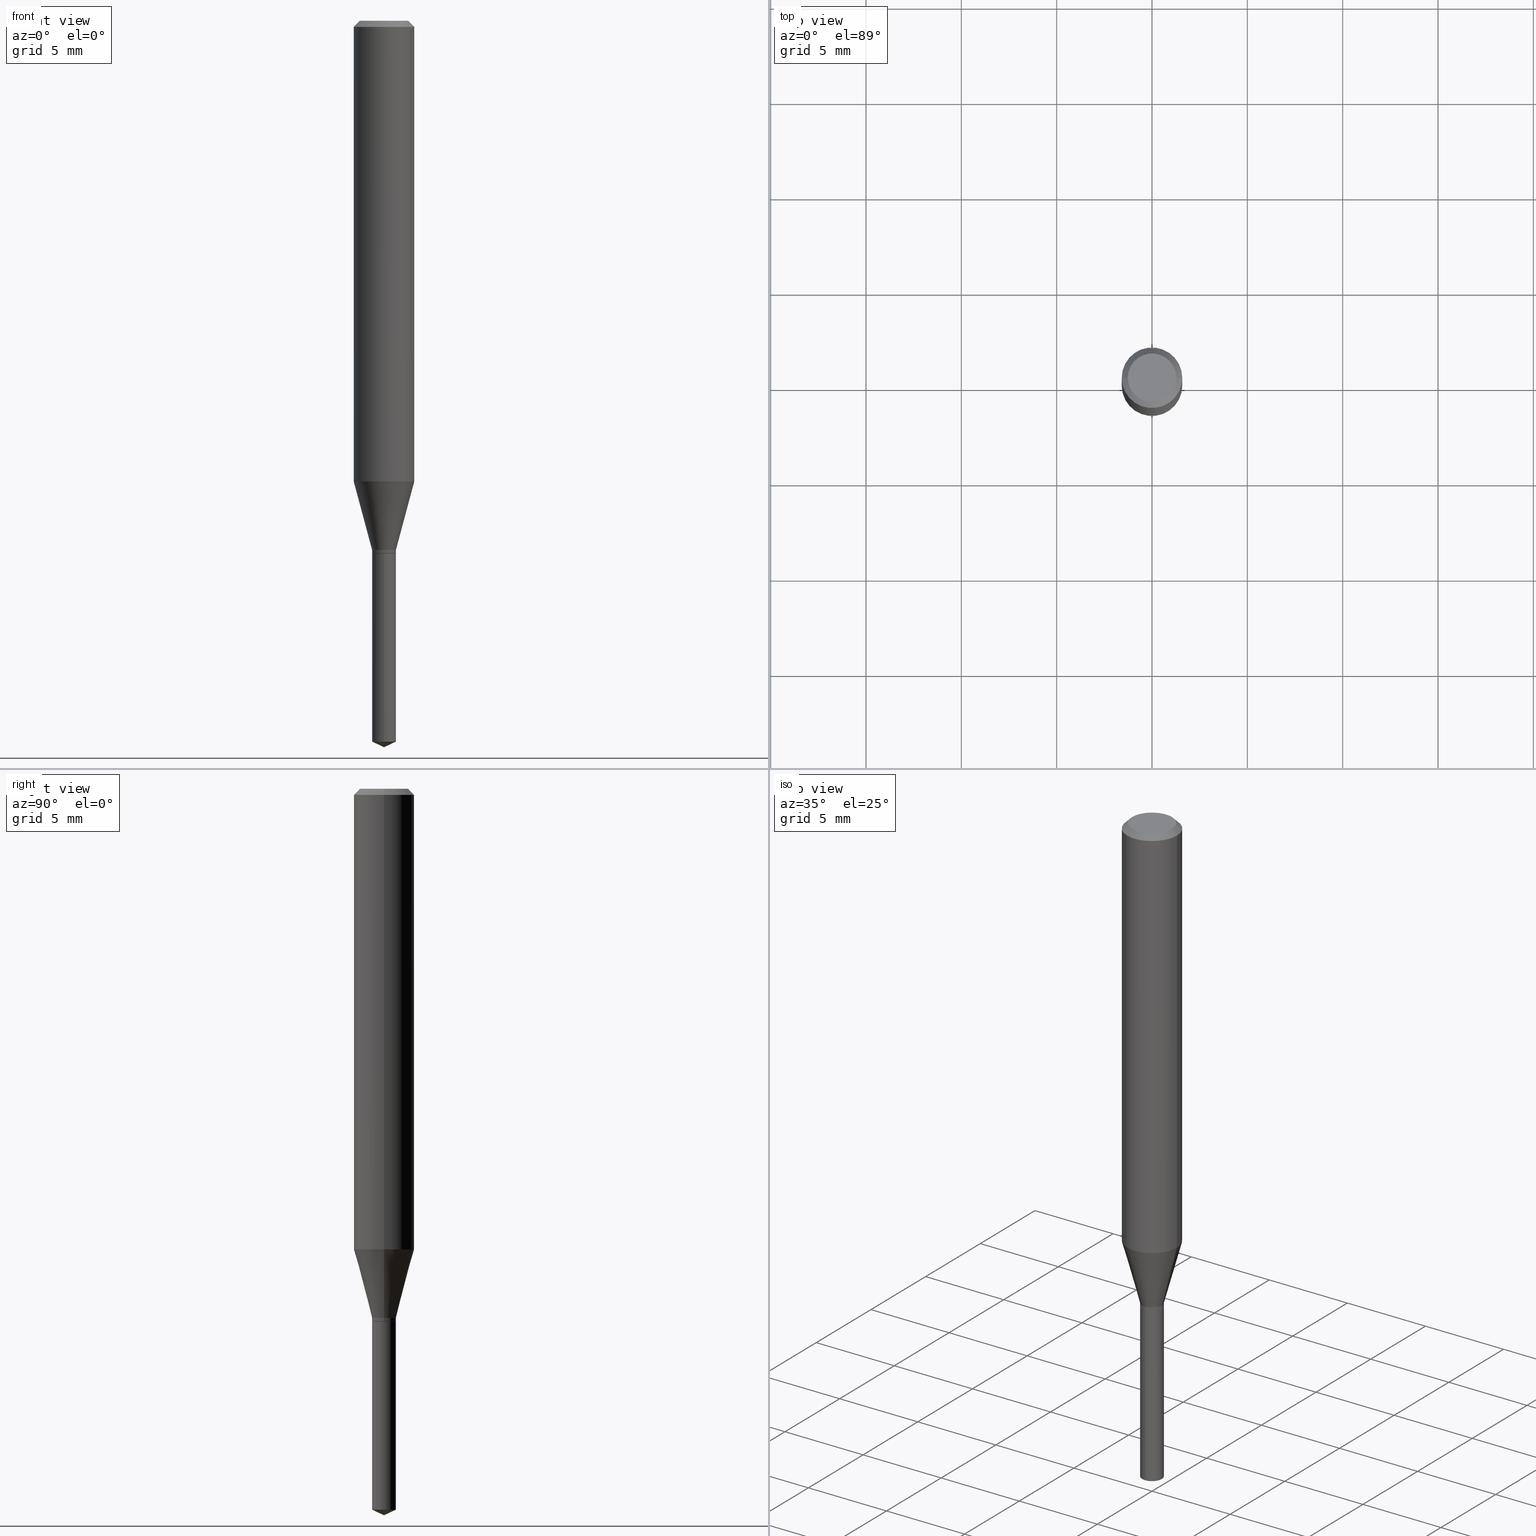
[diagram: canonical four-view strip — front | top / right | iso, engineering-drawing reading convention]
A machine part, canonical four-view strip (front | top / right | iso — engineering-drawing reading convention). The complete STEP part file that produces these views, byte-faithful:
ISO-10303-21;
HEADER;
FILE_DESCRIPTION (( 'STEP AP203' ),
    '1' );
FILE_NAME ('07331.STEP',
    '2024-04-23T20:30:36',
    ( '' ),
    ( '' ),
    'SwSTEP 2.0',
    'SolidWorks 2023',
    '' );
FILE_SCHEMA (( 'CONFIG_CONTROL_DESIGN' ));
ENDSEC;

DATA;
#1 = CALENDAR_DATE ( 2024, 23, 4 ) ;
#2 = ORIENTED_EDGE ( 'NONE', *, *, #324, .T. ) ;
#3 = ADVANCED_FACE ( 'NONE', ( #25 ), #369, .T. ) ;
#4 = PERSON_AND_ORGANIZATION ( #427, #166 ) ;
#5 = DIRECTION ( 'NONE',  ( 1.000000000000000000, -6.982962677686261977E-15, 0.000000000000000000 ) ) ;
#6 = CONICAL_SURFACE ( 'NONE', #83, 0.02460000000000000034, 0.2617993877991500740 ) ;
#7 = AXIS2_PLACEMENT_3D ( 'NONE', #31, #483, #368 ) ;
#8 = EDGE_CURVE ( 'NONE', #406, #255, #434, .T. ) ;
#9 = CYLINDRICAL_SURFACE ( 'NONE', #106, 0.06250000000000006939 ) ;
#10 = EDGE_CURVE ( 'NONE', #255, #490, #90, .T. ) ;
#11 = DIRECTION ( 'NONE',  ( -2.445399690415121810E-29, 3.491580316559632610E-15, 1.000000000000000000 ) ) ;
#12 = ORIENTED_EDGE ( 'NONE', *, *, #128, .T. ) ;
#13 = APPROVAL_ROLE ( '' ) ;
#14 = CARTESIAN_POINT ( 'NONE',  ( 0.000000000000000000, 0.000000000000000000, 0.000000000000000000 ) ) ;
#15 = AXIS2_PLACEMENT_3D ( 'NONE', #85, #304, #462 ) ;
#16 = AXIS2_PLACEMENT_3D ( 'NONE', #104, #172, #446 ) ;
#17 = LINE ( 'NONE', #412, #301 ) ;
#18 = EDGE_CURVE ( 'NONE', #198, #127, #447, .T. ) ;
#19 = DIRECTION ( 'NONE',  ( -1.000000000000000000, 6.982962677686265922E-15, -4.876176775795935793E-29 ) ) ;
#20 = DIRECTION ( 'NONE',  ( 1.000000000000000000, -6.982962677686265922E-15, 4.875957971899673662E-29 ) ) ;
#21 = ORIENTED_EDGE ( 'NONE', *, *, #397, .T. ) ;
#22 = CARTESIAN_POINT ( 'NONE',  ( 2.326020553366887075E-29, -3.320940890885878686E-15, -0.9511552743931396270 ) ) ;
#23 = ORIENTED_EDGE ( 'NONE', *, *, #128, .F. ) ;
#24 = DIRECTION ( 'NONE',  ( -2.445468806185136597E-29, 3.491481338843145583E-15, 1.000000000000000000 ) ) ;
#25 = FACE_OUTER_BOUND ( 'NONE', #396, .T. ) ;
#26 = FACE_OUTER_BOUND ( 'NONE', #424, .T. ) ;
#27 = AXIS2_PLACEMENT_3D ( 'NONE', #416, #270, #299 ) ;
#28 = DIRECTION ( 'NONE',  ( 6.982962677686265922E-15, 1.000000000000000000, -3.491580316559632610E-15 ) ) ;
#29 = EDGE_CURVE ( 'NONE', #198, #332, #451, .T. ) ;
#30 = EDGE_LOOP ( 'NONE', ( #444, #350, #76, #305 ) ) ;
#31 = CARTESIAN_POINT ( 'NONE',  ( 2.671919217637880494E-29, -3.814792510820021060E-15, -1.092600000000000016 ) ) ;
#32 = AXIS2_PLACEMENT_3D ( 'NONE', #349, #353, #277 ) ;
#33 = CONICAL_SURFACE ( 'NONE', #16, 0.06250000000000001388, 0.7853981633974452814 ) ;
#34 = ORIENTED_EDGE ( 'NONE', *, *, #42, .T. ) ;
#35 = PRODUCT_DEFINITION_SHAPE ( 'NONE', 'NONE',  #430 ) ;
#36 = PERSON_AND_ORGANIZATION_ROLE ( 'classification_officer' ) ;
#37 = ORIENTED_EDGE ( 'NONE', *, *, #173, .F. ) ;
#38 = DATE_AND_TIME ( #419, #345 ) ;
#39 = DIRECTION ( 'NONE',  ( -2.445468806185136877E-29, 3.491481338843145188E-15, 1.000000000000000000 ) ) ;
#40 = DIRECTION ( 'NONE',  ( 1.000000000000000000, -6.982962677686265922E-15, 0.000000000000000000 ) ) ;
#41 = CIRCLE ( 'NONE', #15, 0.02460000000000000034 ) ;
#42 = EDGE_CURVE ( 'NONE', #309, #490, #384, .T. ) ;
#43 = CALENDAR_DATE ( 2024, 23, 4 ) ;
#44 = CARTESIAN_POINT ( 'NONE',  ( -0.06250000000000012490, -2.876851681035814887E-15, -0.9511552743931396270 ) ) ;
#45 = ORIENTED_EDGE ( 'NONE', *, *, #132, .T. ) ;
#46 = CARTESIAN_POINT ( 'NONE',  ( 2.690015686803650369E-29, -3.840629472727460101E-15, -1.100000000000000089 ) ) ;
#47 = FACE_OUTER_BOUND ( 'NONE', #387, .T. ) ;
#48 = AXIS2_PLACEMENT_3D ( 'NONE', #385, #54, #308 ) ;
#49 = CONICAL_SURFACE ( 'NONE', #7, 0.02460000000000000034, 0.2617993877991500740 ) ;
#50 = CC_DESIGN_DATE_AND_TIME_ASSIGNMENT ( #152, #457, ( #201 ) ) ;
#51 = DIRECTION ( 'NONE',  ( 1.000000000000000000, -6.982962677686266711E-15, 4.876176775795935793E-29 ) ) ;
#52 = ORIENTED_EDGE ( 'NONE', *, *, #364, .T. ) ;
#53 = DIRECTION ( 'NONE',  ( -2.445468806185136597E-29, 3.491481338843145583E-15, 1.000000000000000000 ) ) ;
#54 = DIRECTION ( 'NONE',  ( -2.445399690415121530E-29, 3.491580316559632610E-15, 1.000000000000000000 ) ) ;
#55 = ORIENTED_EDGE ( 'NONE', *, *, #69, .T. ) ;
#56 = CONICAL_SURFACE ( 'NONE', #48, 84.42940631927238826, 1.134464013796307125 ) ;
#57 = DIRECTION ( 'NONE',  ( 2.438088387897960049E-29, -3.491481338843145188E-15, -1.000000000000000000 ) ) ;
#58 = ORIENTED_EDGE ( 'NONE', *, *, #69, .F. ) ;
#59 = CARTESIAN_POINT ( 'NONE',  ( 3.893286209682126177E-47, -5.558580879666067980E-33, -1.592040838891559689E-18 ) ) ;
#60 = DIRECTION ( 'NONE',  ( 1.000000000000000000, -6.982962677686264344E-15, 0.000000000000000000 ) ) ;
#61 = ORIENTED_EDGE ( 'NONE', *, *, #132, .F. ) ;
#62 = FACE_OUTER_BOUND ( 'NONE', #467, .T. ) ;
#63 = CC_DESIGN_PERSON_AND_ORGANIZATION_ASSIGNMENT ( #4, #36, ( #201 ) ) ;
#64 = CIRCLE ( 'NONE', #472, 0.04999999999999999584 ) ;
#65 = CIRCLE ( 'NONE', #258, 0.02460000000000000034 ) ;
#66 = PLANE ( 'NONE',  #410 ) ;
#67 = VERTEX_POINT ( 'NONE', #420 ) ;
#68 = LINE ( 'NONE', #70, #100 ) ;
#69 = EDGE_CURVE ( 'NONE', #355, #127, #119, .T. ) ;
#70 = CARTESIAN_POINT ( 'NONE',  ( 0.06250000000000001388, -4.724246415962604812E-16, -0.01250000000000008916 ) ) ;
#71 = ORIENTED_EDGE ( 'NONE', *, *, #18, .T. ) ;
#72 = ADVANCED_FACE ( 'NONE', ( #295 ), #229, .T. ) ;
#73 = DIRECTION ( 'NONE',  ( -2.445468806185136597E-29, 3.491481338843145583E-15, 1.000000000000000000 ) ) ;
#74 = VECTOR ( 'NONE', #39, 39.37007874015748143 ) ;
#75 = AXIS2_PLACEMENT_3D ( 'NONE', #405, #287, #398 ) ;
#76 = ORIENTED_EDGE ( 'NONE', *, *, #307, .T. ) ;
#77 = APPLICATION_PROTOCOL_DEFINITION ( 'international standard', 'config_control_design', 1994, #203 ) ;
#78 = DIRECTION ( 'NONE',  ( -2.445468806185136597E-29, 3.491481338843145583E-15, 1.000000000000000000 ) ) ;
#79 = ADVANCED_FACE ( 'NONE', ( #47 ), #6, .T. ) ;
#80 = CARTESIAN_POINT ( 'NONE',  ( 3.056836007731442729E-31, -4.364351673553962300E-17, -0.01250000000000008916 ) ) ;
#81 = MECHANICAL_CONTEXT ( 'NONE', #443, 'mechanical' ) ;
#82 = LINE ( 'NONE', #300, #429 ) ;
#83 = AXIS2_PLACEMENT_3D ( 'NONE', #260, #121, #5 ) ;
#84 = PERSON_AND_ORGANIZATION_ROLE ( 'creator' ) ;
#85 = CARTESIAN_POINT ( 'NONE',  ( 2.690015686803650369E-29, -3.840629472727460101E-15, -1.100000000000000089 ) ) ;
#86 = APPROVAL_DATE_TIME ( #120, #346 ) ;
#87 = CARTESIAN_POINT ( 'NONE',  ( 2.690015686803650369E-29, -3.840629472727460101E-15, -1.100000000000000089 ) ) ;
#88 = EDGE_CURVE ( 'NONE', #196, #355, #361, .T. ) ;
#89 = DIRECTION ( 'NONE',  ( -0.7071067811865232589, 7.493145998870265808E-15, 0.7071067811865715536 ) ) ;
#90 = CIRCLE ( 'NONE', #174, 0.02460000000000000034 ) ;
#91 = DIRECTION ( 'NONE',  ( -6.982962677686265922E-15, -1.000000000000000000, 0.000000000000000000 ) ) ;
#92 = EDGE_LOOP ( 'NONE', ( #432, #21, #331 ) ) ;
#93 = DIRECTION ( 'NONE',  ( 1.000000000000000000, -6.982962677686264344E-15, 0.000000000000000000 ) ) ;
#94 = ADVANCED_FACE ( 'NONE', ( #459 ), #257, .T. ) ;
#95 = ORIENTED_EDGE ( 'NONE', *, *, #206, .F. ) ;
#96 = CARTESIAN_POINT ( 'NONE',  ( 3.668252923656895710E-29, -5.237152723863177100E-15, -1.500000000000000222 ) ) ;
#97 = ORIENTED_EDGE ( 'NONE', *, *, #461, .F. ) ;
#98 = AXIS2_PLACEMENT_3D ( 'NONE', #87, #413, #227 ) ;
#99 = ADVANCED_BREP_SHAPE_REPRESENTATION ( '07331', ( #296, #469, #242 ), #175 ) ;
#100 = VECTOR ( 'NONE', #487, 39.37007874015748143 ) ;
#101 = LINE ( 'NONE', #161, #150 ) ;
#102 = DIRECTION ( 'NONE',  ( -6.982962677686265922E-15, -1.000000000000000000, 5.552536572488340164E-15 ) ) ;
#103 = VERTEX_POINT ( 'NONE', #466 ) ;
#104 = CARTESIAN_POINT ( 'NONE',  ( 3.056836007731442729E-31, -4.364351673553962300E-17, -0.01250000000000008916 ) ) ;
#105 = CARTESIAN_POINT ( 'NONE',  ( 2.671919217637880494E-29, -3.814792510820021060E-15, -1.092600000000000016 ) ) ;
#106 = AXIS2_PLACEMENT_3D ( 'NONE', #14, #153, #51 ) ;
#107 = LOCAL_TIME ( 16, 30, 36.00000000000000000, #259 ) ;
#108 = CARTESIAN_POINT ( 'NONE',  ( -1.717808818710552189E-16, -0.02460000000000384102, -1.099999999999999867 ) ) ;
#109 = EDGE_CURVE ( 'NONE', #67, #103, #186, .T. ) ;
#110 = ORIENTED_EDGE ( 'NONE', *, *, #367, .T. ) ;
#111 = CARTESIAN_POINT ( 'NONE',  ( -0.04999999999999999584, 3.709698922520826725E-16, -1.592040838894077649E-18 ) ) ;
#112 = ORIENTED_EDGE ( 'NONE', *, *, #42, .F. ) ;
#113 = PERSON_AND_ORGANIZATION_ROLE ( 'creator' ) ;
#114 = APPROVAL_PERSON_ORGANIZATION ( #455, #346, #298 ) ;
#115 = DIRECTION ( 'NONE',  ( 1.000000000000000000, -6.982962677686261189E-15, 0.000000000000000000 ) ) ;
#116 = COORDINATED_UNIVERSAL_TIME_OFFSET ( 5, 0, .BEHIND. ) ;
#117 = DIRECTION ( 'NONE',  ( -2.445468806185136597E-29, 3.491481338843145583E-15, 1.000000000000000000 ) ) ;
#118 = DATE_AND_TIME ( #149, #293 ) ;
#119 = LINE ( 'NONE', #151, #409 ) ;
#120 = DATE_AND_TIME ( #43, #286 ) ;
#121 = DIRECTION ( 'NONE',  ( -2.445468806185136597E-29, 3.491481338843145583E-15, 1.000000000000000000 ) ) ;
#122 = CLOSED_SHELL ( 'NONE', ( #330, #374, #244, #290, #445 ) ) ;
#123 = PERSON_AND_ORGANIZATION ( #427, #166 ) ;
#124 = DIRECTION ( 'NONE',  ( 1.000000000000000000, -6.982962677686261189E-15, 0.000000000000000000 ) ) ;
#125 = CC_DESIGN_PERSON_AND_ORGANIZATION_ASSIGNMENT ( #378, #269, ( #233 ) ) ;
#126 = LINE ( 'NONE', #426, #393 ) ;
#127 = VERTEX_POINT ( 'NONE', #456 ) ;
#128 = EDGE_CURVE ( 'NONE', #196, #198, #82, .T. ) ;
#129 = DIRECTION ( 'NONE',  ( -2.445468806185136877E-29, 3.491481338843145188E-15, 1.000000000000000000 ) ) ;
#130 = VECTOR ( 'NONE', #11, 39.37007874015748143 ) ;
#131 = CIRCLE ( 'NONE', #194, 0.02460000000000000034 ) ;
#132 = EDGE_CURVE ( 'NONE', #488, #332, #423, .T. ) ;
#133 = CARTESIAN_POINT ( 'NONE',  ( 3.640123971338594615E-29, -5.197209093590707944E-15, -1.488528831609386982 ) ) ;
#134 = DIRECTION ( 'NONE',  ( -2.445468806185136597E-29, 3.491481338843145583E-15, 1.000000000000000000 ) ) ;
#135 = ORIENTED_EDGE ( 'NONE', *, *, #156, .F. ) ;
#136 = FACE_OUTER_BOUND ( 'NONE', #92, .T. ) ;
#137 = EDGE_LOOP ( 'NONE', ( #428, #250, #408, #167 ) ) ;
#138 = AXIS2_PLACEMENT_3D ( 'NONE', #382, #184, #334 ) ;
#139 = CIRCLE ( 'NONE', #218, 0.02460000000000000034 ) ;
#140 =( NAMED_UNIT ( * ) SI_UNIT ( $, .STERADIAN. ) SOLID_ANGLE_UNIT ( ) );
#141 = CC_DESIGN_PERSON_AND_ORGANIZATION_ASSIGNMENT ( #123, #113, ( #233 ) ) ;
#142 = CARTESIAN_POINT ( 'NONE',  ( 0.06250000000000006939, -4.364351673553921624E-16, 3.047610484872463374E-30 ) ) ;
#143 = DIRECTION ( 'NONE',  ( -2.445468806185136597E-29, 3.491481338843145583E-15, 1.000000000000000000 ) ) ;
#144 = AXIS2_PLACEMENT_3D ( 'NONE', #343, #189, #115 ) ;
#145 = ORIENTED_EDGE ( 'NONE', *, *, #404, .T. ) ;
#146 = CARTESIAN_POINT ( 'NONE',  ( 2.326020553366887075E-29, -3.320940890885878686E-15, -0.9511552743931396270 ) ) ;
#147 = DIRECTION ( 'NONE',  ( -2.445468806185136597E-29, 3.491481338843145583E-15, 1.000000000000000000 ) ) ;
#148 = EDGE_CURVE ( 'NONE', #312, #196, #17, .T. ) ;
#149 = CALENDAR_DATE ( 2024, 23, 4 ) ;
#150 = VECTOR ( 'NONE', #468, 39.37007874015748143 ) ;
#151 = CARTESIAN_POINT ( 'NONE',  ( 0.02460000000000000034, -3.986573392691103322E-15, -1.092600000000000016 ) ) ;
#152 = DATE_AND_TIME ( #185, #107 ) ;
#153 = DIRECTION ( 'NONE',  ( -2.445468806185136597E-29, 3.491481338843145583E-15, 1.000000000000000000 ) ) ;
#154 = CARTESIAN_POINT ( 'NONE',  ( -1.717808818710552189E-16, -0.02460000000000384102, -1.099999999999999867 ) ) ;
#155 = ORIENTED_EDGE ( 'NONE', *, *, #386, .T. ) ;
#156 = EDGE_CURVE ( 'NONE', #181, #488, #64, .T. ) ;
#157 = VECTOR ( 'NONE', #475, 39.37007874015748854 ) ;
#158 = CARTESIAN_POINT ( 'NONE',  ( -0.06250000000000001388, 3.927916506198521080E-16, -0.01250000000000008916 ) ) ;
#159 = CIRCLE ( 'NONE', #402, 0.06250000000000012490 ) ;
#160 = ORIENTED_EDGE ( 'NONE', *, *, #10, .T. ) ;
#161 = CARTESIAN_POINT ( 'NONE',  ( 3.668099535622682155E-29, -5.237370474839448718E-15, -1.500000000000000222 ) ) ;
#162 = ADVANCED_FACE ( 'NONE', ( #375 ), #262, .F. ) ;
#163 = CARTESIAN_POINT ( 'NONE',  ( 0.02460000000000000034, -1.717808818710821634E-16, 1.199539486845800236E-30 ) ) ;
#164 = DIRECTION ( 'NONE',  ( -6.982962677686267499E-15, -1.000000000000000000, 3.520397390770535123E-15 ) ) ;
#165 = CLOSED_SHELL ( 'NONE', ( #94, #478, #238, #79, #3, #441, #421, #72, #484, #256, #162, #417 ) ) ;
#166 = ORGANIZATION ( 'UNSPECIFIED', 'UNSPECIFIED', '' ) ;
#167 = ORIENTED_EDGE ( 'NONE', *, *, #307, .F. ) ;
#168 = DIRECTION ( 'NONE',  ( -2.445468806185136597E-29, 3.491481338843145583E-15, 1.000000000000000000 ) ) ;
#169 = EDGE_LOOP ( 'NONE', ( #283, #160 ) ) ;
#170 = DIRECTION ( 'NONE',  ( 1.000000000000000000, -6.982962677686261977E-15, 0.000000000000000000 ) ) ;
#171 = CARTESIAN_POINT ( 'NONE',  ( 0.000000000000000000, 0.000000000000000000, 0.000000000000000000 ) ) ;
#172 = DIRECTION ( 'NONE',  ( 2.445468806185136597E-29, -3.491481338843145583E-15, -1.000000000000000000 ) ) ;
#173 = EDGE_CURVE ( 'NONE', #490, #255, #41, .T. ) ;
#174 = AXIS2_PLACEMENT_3D ( 'NONE', #317, #479, #102 ) ;
#175 =( GEOMETRIC_REPRESENTATION_CONTEXT ( 3 ) GLOBAL_UNCERTAINTY_ASSIGNED_CONTEXT ( ( #251 ) ) GLOBAL_UNIT_ASSIGNED_CONTEXT ( ( #403, #482, #140 ) ) REPRESENTATION_CONTEXT ( 'NONE', 'WORKASPACE' ) );
#176 =( LENGTH_UNIT ( ) NAMED_UNIT ( * ) SI_UNIT ( $, .METRE. ) );
#177 = ORIENTED_EDGE ( 'NONE', *, *, #380, .T. ) ;
#178 = CIRCLE ( 'NONE', #463, 0.06250000000000001388 ) ;
#179 = CC_DESIGN_APPROVAL ( #346, ( #201 ) ) ;
#180 = LINE ( 'NONE', #142, #303 ) ;
#181 = VERTEX_POINT ( 'NONE', #453 ) ;
#182 = VERTEX_POINT ( 'NONE', #379 ) ;
#183 = APPROVAL_STATUS ( 'not_yet_approved' ) ;
#184 = DIRECTION ( 'NONE',  ( -2.445468806185136597E-29, 3.491481338843145583E-15, 1.000000000000000000 ) ) ;
#185 = CALENDAR_DATE ( 2024, 23, 4 ) ;
#186 = CIRCLE ( 'NONE', #211, 0.02409999999999999989 ) ;
#187 = CIRCLE ( 'NONE', #337, 0.04999999999999999584 ) ;
#188 = CARTESIAN_POINT ( 'NONE',  ( -0.02460000000000000034, -3.652044608442045501E-15, -1.092600000000000016 ) ) ;
#189 = DIRECTION ( 'NONE',  ( -2.445468806185136597E-29, 3.491481338843145583E-15, 1.000000000000000000 ) ) ;
#190 = ORIENTED_EDGE ( 'NONE', *, *, #109, .F. ) ;
#191 = DIRECTION ( 'NONE',  ( 1.000000000000000000, -6.982962677686261189E-15, 0.000000000000000000 ) ) ;
#192 = ORIENTED_EDGE ( 'NONE', *, *, #29, .T. ) ;
#193 = DIRECTION ( 'NONE',  ( -0.2588190451025213501, 5.211531920934551042E-15, 0.9659258262890682012 ) ) ;
#194 = AXIS2_PLACEMENT_3D ( 'NONE', #232, #143, #489 ) ;
#195 = CARTESIAN_POINT ( 'NONE',  ( 1.747935129970210836E-16, 0.02459999999999615966, -1.100000000000000089 ) ) ;
#196 = VERTEX_POINT ( 'NONE', #188 ) ;
#197 = CYLINDRICAL_SURFACE ( 'NONE', #354, 0.02460000000000000034 ) ;
#198 = VERTEX_POINT ( 'NONE', #44 ) ;
#199 = CARTESIAN_POINT ( 'NONE',  ( 0.02460000000000000034, -4.010664613929120071E-15, -1.099499999999999922 ) ) ;
#200 = AXIS2_PLACEMENT_3D ( 'NONE', #146, #246, #60 ) ;
#201 = SECURITY_CLASSIFICATION ( '', '', #340 ) ;
#202 = EDGE_LOOP ( 'NONE', ( #52, #192, #228, #359 ) ) ;
#203 = APPLICATION_CONTEXT ( 'configuration controlled 3d designs of mechanical parts and assemblies' ) ;
#204 = FACE_OUTER_BOUND ( 'NONE', #485, .T. ) ;
#205 = EDGE_LOOP ( 'NONE', ( #342, #450, #480 ) ) ;
#206 = EDGE_CURVE ( 'NONE', #103, #67, #310, .T. ) ;
#207 = CARTESIAN_POINT ( 'NONE',  ( 0.02409999999999999989, -4.008918873259699356E-15, -1.100000000000000089 ) ) ;
#208 = CARTESIAN_POINT ( 'NONE',  ( -0.06250000000000006939, 4.440892098500631092E-16, -3.074334431409319267E-30 ) ) ;
#209 = FACE_OUTER_BOUND ( 'NONE', #422, .T. ) ;
#210 = EDGE_CURVE ( 'NONE', #332, #182, #267, .T. ) ;
#211 = AXIS2_PLACEMENT_3D ( 'NONE', #347, #268, #124 ) ;
#212 = CARTESIAN_POINT ( 'NONE',  ( 3.056836007731442729E-31, -4.364351673553962300E-17, -0.01250000000000008916 ) ) ;
#213 = ORIENTED_EDGE ( 'NONE', *, *, #313, .F. ) ;
#214 = DIRECTION ( 'NONE',  ( -1.000000000000000000, 6.982962677686265922E-15, 0.000000000000000000 ) ) ;
#215 = FACE_OUTER_BOUND ( 'NONE', #30, .T. ) ;
#216 = DIRECTION ( 'NONE',  ( -2.445399690415121810E-29, 3.491580316559632610E-15, 1.000000000000000000 ) ) ;
#217 = CIRCLE ( 'NONE', #318, 0.02460000000000000034 ) ;
#218 = AXIS2_PLACEMENT_3D ( 'NONE', #356, #24, #170 ) ;
#219 = DIRECTION ( 'NONE',  ( 1.000000000000000000, -6.982962677686261977E-15, 0.000000000000000000 ) ) ;
#220 = VERTEX_POINT ( 'NONE', #339 ) ;
#221 = COORDINATED_UNIVERSAL_TIME_OFFSET ( 5, 0, .BEHIND. ) ;
#222 = CC_DESIGN_DATE_AND_TIME_ASSIGNMENT ( #373, #452, ( #430 ) ) ;
#223 = DIRECTION ( 'NONE',  ( 1.000000000000000000, -6.982962677686265922E-15, 4.875957971899673662E-29 ) ) ;
#224 = DIRECTION ( 'NONE',  ( 0.2588190451025213501, 1.565188264969621968E-15, 0.9659258262890682012 ) ) ;
#225 = PERSON_AND_ORGANIZATION_ROLE ( 'design_owner' ) ;
#226 = CC_DESIGN_SECURITY_CLASSIFICATION ( #201, ( #233 ) ) ;
#227 = DIRECTION ( 'NONE',  ( 1.000000000000000000, -6.982962677686265922E-15, 4.876176775795935793E-29 ) ) ;
#228 = ORIENTED_EDGE ( 'NONE', *, *, #292, .F. ) ;
#229 = CYLINDRICAL_SURFACE ( 'NONE', #138, 0.06250000000000006939 ) ;
#230 = FACE_OUTER_BOUND ( 'NONE', #202, .T. ) ;
#231 = CC_DESIGN_PERSON_AND_ORGANIZATION_ASSIGNMENT ( #415, #84, ( #430 ) ) ;
#232 = CARTESIAN_POINT ( 'NONE',  ( 2.688792952400557567E-29, -3.838883732058038598E-15, -1.099499999999999922 ) ) ;
#233 = PRODUCT_DEFINITION_FORMATION_WITH_SPECIFIED_SOURCE ( 'ANY', '', #321, .NOT_KNOWN. ) ;
#234 = ORIENTED_EDGE ( 'NONE', *, *, #88, .F. ) ;
#235 = CARTESIAN_POINT ( 'NONE',  ( 0.02460000000000000034, -3.986573392691103322E-15, -1.092600000000000016 ) ) ;
#236 = ORIENTED_EDGE ( 'NONE', *, *, #458, .F. ) ;
#237 = CARTESIAN_POINT ( 'NONE',  ( 1.946643104841063088E-47, -2.779290439833033990E-33, -7.960204194457798443E-19 ) ) ;
#238 = ADVANCED_FACE ( 'NONE', ( #230 ), #9, .T. ) ;
#239 = EDGE_LOOP ( 'NONE', ( #110, #476 ) ) ;
#240 = DIRECTION ( 'NONE',  ( -6.982962677686265922E-15, -1.000000000000000000, 5.552536572488340164E-15 ) ) ;
#241 = VECTOR ( 'NONE', #216, 39.37007874015748143 ) ;
#242 = AXIS2_PLACEMENT_3D ( 'NONE', #407, #486, #252 ) ;
#243 = ORIENTED_EDGE ( 'NONE', *, *, #458, .T. ) ;
#244 = ADVANCED_FACE ( 'NONE', ( #136 ), #56, .T. ) ;
#245 = DIRECTION ( 'NONE',  ( 1.000000000000000000, -6.982962677686265922E-15, 0.000000000000000000 ) ) ;
#246 = DIRECTION ( 'NONE',  ( -2.445468806185136597E-29, 3.491481338843145583E-15, 1.000000000000000000 ) ) ;
#247 = ORIENTED_EDGE ( 'NONE', *, *, #292, .T. ) ;
#248 = DIRECTION ( 'NONE',  ( -2.445468806185136877E-29, 3.491481338843145188E-15, 1.000000000000000000 ) ) ;
#249 = ORIENTED_EDGE ( 'NONE', *, *, #425, .T. ) ;
#250 = ORIENTED_EDGE ( 'NONE', *, *, #401, .T. ) ;
#251 = UNCERTAINTY_MEASURE_WITH_UNIT (LENGTH_MEASURE( 1.000000000000000082E-05 ), #403, 'distance_accuracy_value', 'NONE');
#252 = DIRECTION ( 'NONE',  ( 1.000000000000000000, 0.000000000000000000, 0.000000000000000000 ) ) ;
#253 = DIRECTION ( 'NONE',  ( 1.000000000000000000, -6.982962677686266711E-15, 4.876176775795935793E-29 ) ) ;
#254 = CARTESIAN_POINT ( 'NONE',  ( 1.747935129970210343E-16, 0.02459999999999480658, -1.488528831609386982 ) ) ;
#255 = VERTEX_POINT ( 'NONE', #195 ) ;
#256 = ADVANCED_FACE ( 'NONE', ( #271 ), #474, .F. ) ;
#257 = CONICAL_SURFACE ( 'NONE', #352, 0.02409999999999999989, 0.7853981633974141952 ) ;
#258 = AXIS2_PLACEMENT_3D ( 'NONE', #105, #285, #219 ) ;
#259 = COORDINATED_UNIVERSAL_TIME_OFFSET ( 5, 0, .BEHIND. ) ;
#260 = CARTESIAN_POINT ( 'NONE',  ( 2.671919217637880494E-29, -3.814792510820021060E-15, -1.092600000000000016 ) ) ;
#261 = PERSON_AND_ORGANIZATION ( #427, #166 ) ;
#262 = PLANE ( 'NONE',  #98 ) ;
#263 = APPROVAL_STATUS ( 'not_yet_approved' ) ;
#264 = DIRECTION ( 'NONE',  ( -0.7071067811865453523, 2.468850131082234184E-15, -0.7071067811865496822 ) ) ;
#265 = DIMENSIONAL_EXPONENTS ( 1.000000000000000000, 0.000000000000000000, 0.000000000000000000, 0.000000000000000000, 0.000000000000000000, 0.000000000000000000, 0.000000000000000000 ) ;
#266 = PERSON_AND_ORGANIZATION ( #427, #166 ) ;
#267 = CIRCLE ( 'NONE', #370, 0.06250000000000001388 ) ;
#268 = DIRECTION ( 'NONE',  ( -2.445468806185136597E-29, 3.491481338843145583E-15, 1.000000000000000000 ) ) ;
#269 = PERSON_AND_ORGANIZATION_ROLE ( 'design_supplier' ) ;
#270 = DIRECTION ( 'NONE',  ( -2.445468806185136597E-29, 3.491481338843145583E-15, 1.000000000000000000 ) ) ;
#271 = FACE_OUTER_BOUND ( 'NONE', #239, .T. ) ;
#272 = ORIENTED_EDGE ( 'NONE', *, *, #364, .F. ) ;
#273 = VECTOR ( 'NONE', #264, 39.37007874015748143 ) ;
#274 = CARTESIAN_POINT ( 'NONE',  ( -0.06250000000000001388, -1.238202993960645522E-15, -0.01250000000000008916 ) ) ;
#275 = CONICAL_SURFACE ( 'NONE', #75, 0.02409999999999999989, 0.7853981633974141952 ) ;
#276 = ORIENTED_EDGE ( 'NONE', *, *, #8, .F. ) ;
#277 = DIRECTION ( 'NONE',  ( -6.982962677686265922E-15, -1.000000000000000000, 5.552536572488340164E-15 ) ) ;
#278 = CARTESIAN_POINT ( 'NONE',  ( -9.260740279983036507E-28, 1.322265303911854087E-13, 37.87007874015748143 ) ) ;
#279 = ORIENTED_EDGE ( 'NONE', *, *, #210, .F. ) ;
#280 = DIRECTION ( 'NONE',  ( -2.445399690415121530E-29, 3.491580316559632610E-15, 1.000000000000000000 ) ) ;
#281 = APPROVAL_PERSON_ORGANIZATION ( #266, #383, #381 ) ;
#282 = VERTEX_POINT ( 'NONE', #199 ) ;
#283 = ORIENTED_EDGE ( 'NONE', *, *, #173, .T. ) ;
#284 = DIRECTION ( 'NONE',  ( 2.445399690415121250E-29, -3.491580316559632610E-15, -1.000000000000000000 ) ) ;
#285 = DIRECTION ( 'NONE',  ( -2.445468806185136597E-29, 3.491481338843145583E-15, 1.000000000000000000 ) ) ;
#286 = LOCAL_TIME ( 16, 30, 36.00000000000000000, #116 ) ;
#287 = DIRECTION ( 'NONE',  ( -2.445468806185136597E-29, 3.491481338843145583E-15, 1.000000000000000000 ) ) ;
#288 = ORIENTED_EDGE ( 'NONE', *, *, #461, .T. ) ;
#289 = CARTESIAN_POINT ( 'NONE',  ( 1.747935129970115187E-16, 0.02459999999999615966, -1.100000000000000089 ) ) ;
#290 = ADVANCED_FACE ( 'NONE', ( #204 ), #306, .T. ) ;
#291 = DIRECTION ( 'NONE',  ( -2.445468806185136877E-29, 3.491481338843145188E-15, 1.000000000000000000 ) ) ;
#292 = EDGE_CURVE ( 'NONE', #182, #332, #178, .T. ) ;
#293 = LOCAL_TIME ( 16, 30, 36.00000000000000000, #333 ) ;
#294 = SHAPE_DEFINITION_REPRESENTATION ( #35, #99 ) ;
#295 = FACE_OUTER_BOUND ( 'NONE', #471, .T. ) ;
#296 = MANIFOLD_SOLID_BREP ( 'Body-Move/Copy2[1]', #122 ) ;
#297 = PRODUCT_RELATED_PRODUCT_CATEGORY ( 'detail', '', ( #321 ) ) ;
#298 = APPROVAL_ROLE ( '' ) ;
#299 = DIRECTION ( 'NONE',  ( 1.000000000000000000, -6.982962677686261977E-15, 0.000000000000000000 ) ) ;
#300 = CARTESIAN_POINT ( 'NONE',  ( -0.02460000000000000034, -3.639998997823036732E-15, -1.092600000000000016 ) ) ;
#301 = VECTOR ( 'NONE', #291, 39.37007874015748143 ) ;
#302 = APPROVAL_DATE_TIME ( #118, #335 ) ;
#303 = VECTOR ( 'NONE', #248, 39.37007874015748143 ) ;
#304 = DIRECTION ( 'NONE',  ( -2.445399690415121530E-29, 3.491580316559632610E-15, 1.000000000000000000 ) ) ;
#305 = ORIENTED_EDGE ( 'NONE', *, *, #386, .F. ) ;
#306 = CYLINDRICAL_SURFACE ( 'NONE', #32, 0.02460000000000000034 ) ;
#307 = EDGE_CURVE ( 'NONE', #67, #282, #477, .T. ) ;
#308 = DIRECTION ( 'NONE',  ( -6.982962677686267499E-15, -1.000000000000000000, 3.520397390770535123E-15 ) ) ;
#309 = VERTEX_POINT ( 'NONE', #470 ) ;
#310 = CIRCLE ( 'NONE', #144, 0.02409999999999999989 ) ;
#311 = CARTESIAN_POINT ( 'NONE',  ( 3.640123971338594615E-29, -5.197209093590707944E-15, -1.488528831609386982 ) ) ;
#312 = VERTEX_POINT ( 'NONE', #431 ) ;
#313 = EDGE_CURVE ( 'NONE', #282, #355, #395, .T. ) ;
#314 = DIRECTION ( 'NONE',  ( -2.445399690415121530E-29, 3.491580316559632610E-15, 1.000000000000000000 ) ) ;
#315 = ORIENTED_EDGE ( 'NONE', *, *, #313, .T. ) ;
#316 = CARTESIAN_POINT ( 'NONE',  ( 3.056836007731442729E-31, -4.364351673553962300E-17, -0.01250000000000008916 ) ) ;
#317 = CARTESIAN_POINT ( 'NONE',  ( 2.690015686803650369E-29, -3.840629472727460101E-15, -1.100000000000000089 ) ) ;
#318 = AXIS2_PLACEMENT_3D ( 'NONE', #133, #390, #91 ) ;
#319 = APPROVAL_PERSON_ORGANIZATION ( #261, #335, #13 ) ;
#320 = EDGE_CURVE ( 'NONE', #220, #406, #388, .T. ) ;
#321 = PRODUCT ( '07331', '07331', '', ( #81 ) ) ;
#322 = CARTESIAN_POINT ( 'NONE',  ( 0.000000000000000000, 0.000000000000000000, 0.000000000000000000 ) ) ;
#323 = ORIENTED_EDGE ( 'NONE', *, *, #8, .T. ) ;
#324 = EDGE_CURVE ( 'NONE', #406, #309, #217, .T. ) ;
#325 = DIRECTION ( 'NONE',  ( 1.000000000000000000, -6.982962677686266711E-15, 4.876176775795935793E-29 ) ) ;
#326 = ORIENTED_EDGE ( 'NONE', *, *, #210, .T. ) ;
#327 = AXIS2_PLACEMENT_3D ( 'NONE', #237, #57, #19 ) ;
#328 = LOCAL_TIME ( 16, 30, 36.00000000000000000, #221 ) ;
#329 = LENGTH_MEASURE_WITH_UNIT ( LENGTH_MEASURE( 0.02539999999999999897 ), #176 );
#330 = ADVANCED_FACE ( 'NONE', ( #351 ), #197, .T. ) ;
#331 = ORIENTED_EDGE ( 'NONE', *, *, #324, .F. ) ;
#332 = VERTEX_POINT ( 'NONE', #274 ) ;
#333 = COORDINATED_UNIVERSAL_TIME_OFFSET ( 5, 0, .BEHIND. ) ;
#334 = DIRECTION ( 'NONE',  ( 1.000000000000000000, -6.982962677686266711E-15, 4.876176775795935793E-29 ) ) ;
#335 = APPROVAL ( #183, 'UNSPECIFIED' ) ;
#336 = AXIS2_PLACEMENT_3D ( 'NONE', #171, #147, #253 ) ;
#337 = AXIS2_PLACEMENT_3D ( 'NONE', #59, #168, #20 ) ;
#338 = COORDINATED_UNIVERSAL_TIME_OFFSET ( 5, 0, .BEHIND. ) ;
#339 = CARTESIAN_POINT ( 'NONE',  ( 3.668099535622682715E-29, -5.237370474839449507E-15, -1.500000000000000222 ) ) ;
#340 = SECURITY_CLASSIFICATION_LEVEL ( 'unclassified' ) ;
#341 = CARTESIAN_POINT ( 'NONE',  ( 3.893286209682126177E-47, -5.558580879666067980E-33, -1.592040838891559689E-18 ) ) ;
#342 = ORIENTED_EDGE ( 'NONE', *, *, #397, .F. ) ;
#343 = CARTESIAN_POINT ( 'NONE',  ( 2.690015686803650369E-29, -3.840629472727460101E-15, -1.100000000000000089 ) ) ;
#344 = ORIENTED_EDGE ( 'NONE', *, *, #18, .F. ) ;
#345 = LOCAL_TIME ( 16, 30, 36.00000000000000000, #338 ) ;
#346 = APPROVAL ( #263, 'UNSPECIFIED' ) ;
#347 = CARTESIAN_POINT ( 'NONE',  ( 2.690015686803650369E-29, -3.840629472727460101E-15, -1.100000000000000089 ) ) ;
#348 = ORIENTED_EDGE ( 'NONE', *, *, #29, .F. ) ;
#349 = CARTESIAN_POINT ( 'NONE',  ( 2.690015686803650369E-29, -3.840629472727460101E-15, -1.100000000000000089 ) ) ;
#350 = ORIENTED_EDGE ( 'NONE', *, *, #206, .T. ) ;
#351 = FACE_OUTER_BOUND ( 'NONE', #440, .T. ) ;
#352 = AXIS2_PLACEMENT_3D ( 'NONE', #46, #78, #191 ) ;
#353 = DIRECTION ( 'NONE',  ( -2.445399690415121530E-29, 3.491580316559632610E-15, 1.000000000000000000 ) ) ;
#354 = AXIS2_PLACEMENT_3D ( 'NONE', #433, #280, #240 ) ;
#355 = VERTEX_POINT ( 'NONE', #235 ) ;
#356 = CARTESIAN_POINT ( 'NONE',  ( 2.688792952400557567E-29, -3.838883732058038598E-15, -1.099499999999999922 ) ) ;
#357 = ORIENTED_EDGE ( 'NONE', *, *, #148, .F. ) ;
#358 = DIRECTION ( 'NONE',  ( -2.445399690415121530E-29, 3.491580316559632610E-15, 1.000000000000000000 ) ) ;
#359 = ORIENTED_EDGE ( 'NONE', *, *, #425, .F. ) ;
#360 = CARTESIAN_POINT ( 'NONE',  ( 2.690015686803650369E-29, -3.840629472727460101E-15, -1.100000000000000089 ) ) ;
#361 = CIRCLE ( 'NONE', #27, 0.02460000000000000034 ) ;
#362 = CONICAL_SURFACE ( 'NONE', #464, 84.42940631927238826, 1.134464013796307125 ) ;
#363 = DIRECTION ( 'NONE',  ( 2.445468806185136597E-29, -3.491481338843145583E-15, -1.000000000000000000 ) ) ;
#364 = EDGE_CURVE ( 'NONE', #127, #198, #159, .T. ) ;
#365 = ORIENTED_EDGE ( 'NONE', *, *, #367, .F. ) ;
#366 = FACE_OUTER_BOUND ( 'NONE', #399, .T. ) ;
#367 = EDGE_CURVE ( 'NONE', #488, #181, #187, .T. ) ;
#368 = DIRECTION ( 'NONE',  ( 1.000000000000000000, -6.982962677686261977E-15, 0.000000000000000000 ) ) ;
#369 = CYLINDRICAL_SURFACE ( 'NONE', #336, 0.02460000000000000034 ) ;
#370 = AXIS2_PLACEMENT_3D ( 'NONE', #80, #376, #40 ) ;
#371 = CC_DESIGN_APPROVAL ( #335, ( #233 ) ) ;
#372 = ORIENTED_EDGE ( 'NONE', *, *, #10, .F. ) ;
#373 = DATE_AND_TIME ( #1, #328 ) ;
#374 = ADVANCED_FACE ( 'NONE', ( #392 ), #362, .T. ) ;
#375 = FACE_OUTER_BOUND ( 'NONE', #391, .T. ) ;
#376 = DIRECTION ( 'NONE',  ( -2.445468806185136597E-29, 3.491481338843145583E-15, 1.000000000000000000 ) ) ;
#377 = CONICAL_SURFACE ( 'NONE', #454, 0.06250000000000001388, 0.7853981633974452814 ) ;
#378 = PERSON_AND_ORGANIZATION ( #427, #166 ) ;
#379 = CARTESIAN_POINT ( 'NONE',  ( 0.06250000000000001388, -4.800786840909313294E-16, -0.01250000000000008916 ) ) ;
#380 = EDGE_CURVE ( 'NONE', #309, #406, #438, .T. ) ;
#381 = APPROVAL_ROLE ( '' ) ;
#382 = CARTESIAN_POINT ( 'NONE',  ( 0.000000000000000000, 0.000000000000000000, 0.000000000000000000 ) ) ;
#383 = APPROVAL ( #460, 'UNSPECIFIED' ) ;
#384 = LINE ( 'NONE', #154, #130 ) ;
#385 = CARTESIAN_POINT ( 'NONE',  ( -9.260740279983036507E-28, 1.322265303911854087E-13, 37.87007874015748143 ) ) ;
#386 = EDGE_CURVE ( 'NONE', #312, #282, #139, .T. ) ;
#387 = EDGE_LOOP ( 'NONE', ( #288, #12, #272, #58 ) ) ;
#388 = LINE ( 'NONE', #96, #481 ) ;
#389 = CC_DESIGN_PERSON_AND_ORGANIZATION_ASSIGNMENT ( #411, #225, ( #321 ) ) ;
#390 = DIRECTION ( 'NONE',  ( -2.445399690415121530E-29, 3.491580316559632610E-15, 1.000000000000000000 ) ) ;
#391 = EDGE_LOOP ( 'NONE', ( #190, #95 ) ) ;
#392 = FACE_OUTER_BOUND ( 'NONE', #205, .T. ) ;
#393 = VECTOR ( 'NONE', #89, 39.37007874015748854 ) ;
#394 = ORIENTED_EDGE ( 'NONE', *, *, #148, .T. ) ;
#395 = LINE ( 'NONE', #163, #437 ) ;
#396 = EDGE_LOOP ( 'NONE', ( #145, #394, #97, #213 ) ) ;
#397 = EDGE_CURVE ( 'NONE', #220, #309, #101, .T. ) ;
#398 = DIRECTION ( 'NONE',  ( 1.000000000000000000, -6.982962677686261189E-15, 0.000000000000000000 ) ) ;
#399 = EDGE_LOOP ( 'NONE', ( #236, #365, #45, #326 ) ) ;
#400 = FACE_OUTER_BOUND ( 'NONE', #169, .T. ) ;
#401 = EDGE_CURVE ( 'NONE', #103, #312, #126, .T. ) ;
#402 = AXIS2_PLACEMENT_3D ( 'NONE', #22, #53, #93 ) ;
#403 =( CONVERSION_BASED_UNIT ( 'INCH', #329 ) LENGTH_UNIT ( ) NAMED_UNIT ( #265 ) );
#404 = EDGE_CURVE ( 'NONE', #282, #312, #131, .T. ) ;
#405 = CARTESIAN_POINT ( 'NONE',  ( 2.690015686803650369E-29, -3.840629472727460101E-15, -1.100000000000000089 ) ) ;
#406 = VERTEX_POINT ( 'NONE', #254 ) ;
#407 = CARTESIAN_POINT ( 'NONE',  ( 0.000000000000000000, 0.000000000000000000, 0.000000000000000000 ) ) ;
#408 = ORIENTED_EDGE ( 'NONE', *, *, #404, .F. ) ;
#409 = VECTOR ( 'NONE', #224, 39.37007874015747433 ) ;
#410 = AXIS2_PLACEMENT_3D ( 'NONE', #360, #284, #28 ) ;
#411 = PERSON_AND_ORGANIZATION ( #427, #166 ) ;
#412 = CARTESIAN_POINT ( 'NONE',  ( -0.02460000000000000034, 1.747935129969846481E-16, -1.210058032202706883E-30 ) ) ;
#413 = DIRECTION ( 'NONE',  ( -2.438088387897960049E-29, 3.491481338843145188E-15, 1.000000000000000000 ) ) ;
#414 = DESIGN_CONTEXT ( 'detailed design', #203, 'design' ) ;
#415 = PERSON_AND_ORGANIZATION ( #427, #166 ) ;
#416 = CARTESIAN_POINT ( 'NONE',  ( 2.671919217637880494E-29, -3.814792510820021060E-15, -1.092600000000000016 ) ) ;
#417 = ADVANCED_FACE ( 'NONE', ( #215 ), #275, .T. ) ;
#418 = AXIS2_PLACEMENT_3D ( 'NONE', #311, #314, #435 ) ;
#419 = CALENDAR_DATE ( 2024, 23, 4 ) ;
#420 = CARTESIAN_POINT ( 'NONE',  ( 0.02409999999999999989, -4.008918873259699356E-15, -1.100000000000000089 ) ) ;
#421 = ADVANCED_FACE ( 'NONE', ( #62 ), #49, .T. ) ;
#422 = EDGE_LOOP ( 'NONE', ( #357, #155, #315, #234 ) ) ;
#423 = LINE ( 'NONE', #158, #273 ) ;
#424 = EDGE_LOOP ( 'NONE', ( #135, #243, #247, #61 ) ) ;
#425 = EDGE_CURVE ( 'NONE', #127, #182, #180, .T. ) ;
#426 = CARTESIAN_POINT ( 'NONE',  ( -0.02409999999999999989, -3.669388673409275883E-15, -1.100000000000000089 ) ) ;
#427 = PERSON ( 'UNSPECIFIED', 'UNSPECIFIED', 'UNSPECIFIED', ('UNSPECIFIED'), ('UNSPECIFIED'), ('UNSPECIFIED') ) ;
#428 = ORIENTED_EDGE ( 'NONE', *, *, #109, .T. ) ;
#429 = VECTOR ( 'NONE', #193, 39.37007874015747433 ) ;
#430 = PRODUCT_DEFINITION ( 'UNKNOWN', '', #233, #414 ) ;
#431 = CARTESIAN_POINT ( 'NONE',  ( -0.02460000000000000034, -3.652044608442045501E-15, -1.099499999999999922 ) ) ;
#432 = ORIENTED_EDGE ( 'NONE', *, *, #320, .F. ) ;
#433 = CARTESIAN_POINT ( 'NONE',  ( 2.690015686803650369E-29, -3.840629472727460101E-15, -1.100000000000000089 ) ) ;
#434 = LINE ( 'NONE', #289, #241 ) ;
#435 = DIRECTION ( 'NONE',  ( -6.982962677686265922E-15, -1.000000000000000000, 0.000000000000000000 ) ) ;
#436 = ORIENTED_EDGE ( 'NONE', *, *, #88, .T. ) ;
#437 = VECTOR ( 'NONE', #129, 39.37007874015748143 ) ;
#438 = CIRCLE ( 'NONE', #418, 0.02460000000000000034 ) ;
#439 = DIRECTION ( 'NONE',  ( 6.439704144417003532E-15, 0.9063077870366483824, 0.4226182617407027164 ) ) ;
#440 = EDGE_LOOP ( 'NONE', ( #177, #323, #37, #112 ) ) ;
#441 = ADVANCED_FACE ( 'NONE', ( #209 ), #449, .T. ) ;
#442 = APPLICATION_PROTOCOL_DEFINITION ( 'international standard', 'config_control_design', 1994, #443 ) ;
#443 = APPLICATION_CONTEXT ( 'configuration controlled 3d designs of mechanical parts and assemblies' ) ;
#444 = ORIENTED_EDGE ( 'NONE', *, *, #401, .F. ) ;
#445 = ADVANCED_FACE ( 'NONE', ( #400 ), #66, .F. ) ;
#446 = DIRECTION ( 'NONE',  ( -1.000000000000000000, 6.982962677686265922E-15, 0.000000000000000000 ) ) ;
#447 = CIRCLE ( 'NONE', #200, 0.06250000000000012490 ) ;
#448 = CC_DESIGN_APPROVAL ( #383, ( #430 ) ) ;
#449 = CYLINDRICAL_SURFACE ( 'NONE', #473, 0.02460000000000000034 ) ;
#450 = ORIENTED_EDGE ( 'NONE', *, *, #320, .T. ) ;
#451 = LINE ( 'NONE', #208, #74 ) ;
#452 = DATE_TIME_ROLE ( 'creation_date' ) ;
#453 = CARTESIAN_POINT ( 'NONE',  ( 0.04999999999999999584, -4.077247707424184705E-16, -1.592040838888913461E-18 ) ) ;
#454 = AXIS2_PLACEMENT_3D ( 'NONE', #212, #363, #214 ) ;
#455 = PERSON_AND_ORGANIZATION ( #427, #166 ) ;
#456 = CARTESIAN_POINT ( 'NONE',  ( 0.06250000000000012490, -3.757376058241271144E-15, -0.9511552743931396270 ) ) ;
#457 = DATE_TIME_ROLE ( 'classification_date' ) ;
#458 = EDGE_CURVE ( 'NONE', #181, #182, #68, .T. ) ;
#459 = FACE_OUTER_BOUND ( 'NONE', #137, .T. ) ;
#460 = APPROVAL_STATUS ( 'not_yet_approved' ) ;
#461 = EDGE_CURVE ( 'NONE', #355, #196, #65, .T. ) ;
#462 = DIRECTION ( 'NONE',  ( -6.982962677686265922E-15, -1.000000000000000000, 5.552536572488340164E-15 ) ) ;
#463 = AXIS2_PLACEMENT_3D ( 'NONE', #316, #134, #245 ) ;
#464 = AXIS2_PLACEMENT_3D ( 'NONE', #278, #358, #164 ) ;
#465 = APPROVAL_DATE_TIME ( #38, #383 ) ;
#466 = CARTESIAN_POINT ( 'NONE',  ( -0.02409999999999999989, -3.666739446235164682E-15, -1.100000000000000089 ) ) ;
#467 = EDGE_LOOP ( 'NONE', ( #23, #436, #55, #344 ) ) ;
#468 = DIRECTION ( 'NONE',  ( -6.328713451373348079E-15, -0.9063077870366454958, 0.4226182617407090447 ) ) ;
#469 = MANIFOLD_SOLID_BREP ( 'Body-Move/Copy2[2]', #165 ) ;
#470 = CARTESIAN_POINT ( 'NONE',  ( -1.717808818710457772E-16, -0.02460000000000520451, -1.488528831609386982 ) ) ;
#471 = EDGE_LOOP ( 'NONE', ( #348, #71, #249, #279 ) ) ;
#472 = AXIS2_PLACEMENT_3D ( 'NONE', #341, #117, #223 ) ;
#473 = AXIS2_PLACEMENT_3D ( 'NONE', #322, #73, #325 ) ;
#474 = PLANE ( 'NONE',  #327 ) ;
#475 = DIRECTION ( 'NONE',  ( 0.7071067811865232589, -2.468850131082003836E-15, 0.7071067811865715536 ) ) ;
#476 = ORIENTED_EDGE ( 'NONE', *, *, #156, .T. ) ;
#477 = LINE ( 'NONE', #207, #157 ) ;
#478 = ADVANCED_FACE ( 'NONE', ( #26 ), #377, .T. ) ;
#479 = DIRECTION ( 'NONE',  ( -2.445399690415121530E-29, 3.491580316559632610E-15, 1.000000000000000000 ) ) ;
#480 = ORIENTED_EDGE ( 'NONE', *, *, #380, .F. ) ;
#481 = VECTOR ( 'NONE', #439, 39.37007874015748143 ) ;
#482 =( NAMED_UNIT ( * ) PLANE_ANGLE_UNIT ( ) SI_UNIT ( $, .RADIAN. ) );
#483 = DIRECTION ( 'NONE',  ( -2.445468806185136597E-29, 3.491481338843145583E-15, 1.000000000000000000 ) ) ;
#484 = ADVANCED_FACE ( 'NONE', ( #366 ), #33, .T. ) ;
#485 = EDGE_LOOP ( 'NONE', ( #276, #2, #34, #372 ) ) ;
#486 = DIRECTION ( 'NONE',  ( 0.000000000000000000, 0.000000000000000000, 1.000000000000000000 ) ) ;
#487 = DIRECTION ( 'NONE',  ( 0.7071067811865453523, -7.319954787623248157E-15, -0.7071067811865496822 ) ) ;
#488 = VERTEX_POINT ( 'NONE', #111 ) ;
#489 = DIRECTION ( 'NONE',  ( 1.000000000000000000, -6.982962677686261977E-15, 0.000000000000000000 ) ) ;
#490 = VERTEX_POINT ( 'NONE', #108 ) ;
ENDSEC;
END-ISO-10303-21;
